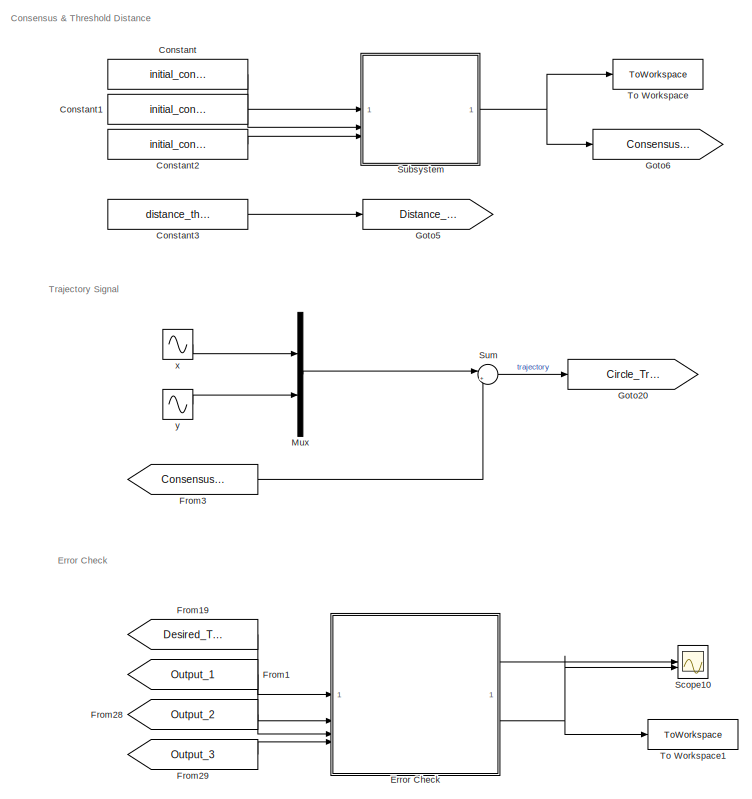
[diagram: root canvas - part 1/2, left side, full height]
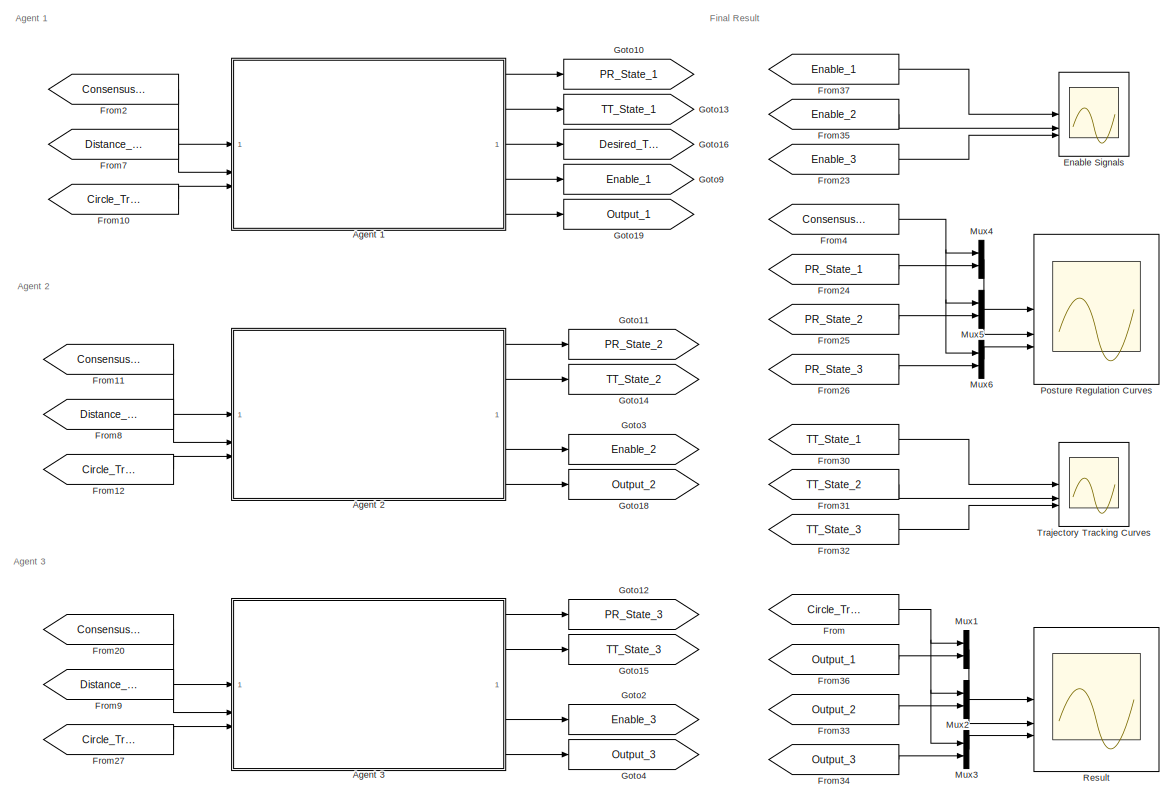
[diagram: root canvas - part 2/2, right side, full height]
MODEL slx_7dde1043251d
KIND model
CONFIG AbsTol = auto
CONFIG EnableMultiTasking = off
CONFIG FixedStep = 0.001
CONFIG MaxStep = auto
CONFIG MinStep = auto
CONFIG RelTol = 1e-4
CONFIG SampleTimeConstraint = Unconstrained
CONFIG SolverName = FixedStepAuto
CONFIG StartTime = 0.0
CONFIG StopTime = 10.0
BLOCK [SubSystem] Agent 1
  InitialCondition = initial_conditions_1
  InitialCondition_trans = initial_conditions_trans_1
  NameLocation = top
  ReferencedSubsystem = agent_model_sub
BLOCK [SubSystem] Agent 2
  InitialCondition = initial_conditions_2
  InitialCondition_trans = initial_conditions_trans_2
  NameLocation = top
  ReferencedSubsystem = agent_model_sub
BLOCK [SubSystem] Agent 3
  InitialCondition = initial_conditions_3
  InitialCondition_trans = initial_conditions_trans_3
  NameLocation = top
  ReferencedSubsystem = agent_model_sub
BLOCK [Constant] Constant
  Value = initial_conditions_1
BLOCK [Constant] Constant1
  Value = initial_conditions_2
BLOCK [Constant] Constant2
  Value = initial_conditions_3
BLOCK [Constant] Constant3
  Value = distance_threshold
BLOCK [Scope] Enable Signals
  Floating = off
  NameLocation = right
  NumInputPorts = 3
  ScopeSpecificationString = Simulink.scopes.TimeScopeBlockCfg('CurrentConfiguration', extmgr.ConfigurationSet(extmgr.Configuration('Core','General UI',true),extmgr.Configuration('Core','Source UI',true),extmgr.Configuration('Sources','WiredSimulink',true,'DataLoggingVariableName','enables','DataLogging',true,'DataLoggingSaveFormat','StructureWithTime'),extmgr.Configuration('Visuals','Time Domain',true,'SerializedDisplays',{s...<+2744ch>
BLOCK [SubSystem] Error Check
  NameLocation = top
  ReferencedSubsystem = error_check_sub
BLOCK [From] From
  GotoTag = Circle_Trajectory
BLOCK [From] From1
  GotoTag = Output_1
BLOCK [From] From10
  GotoTag = Circle_Trajectory
BLOCK [From] From11
  GotoTag = Consensus_Position
BLOCK [From] From12
  GotoTag = Circle_Trajectory
BLOCK [From] From19
  GotoTag = Desired_Trajectory
BLOCK [From] From2
  GotoTag = Consensus_Position
BLOCK [From] From20
  GotoTag = Consensus_Position
BLOCK [From] From23
  GotoTag = Enable_3
BLOCK [From] From24
  GotoTag = PR_State_1
BLOCK [From] From25
  GotoTag = PR_State_2
BLOCK [From] From26
  GotoTag = PR_State_3
BLOCK [From] From27
  GotoTag = Circle_Trajectory
BLOCK [From] From28
  GotoTag = Output_2
BLOCK [From] From29
  GotoTag = Output_3
BLOCK [From] From3
  GotoTag = Consensus_Position
BLOCK [From] From30
  GotoTag = TT_State_1
BLOCK [From] From31
  GotoTag = TT_State_2
BLOCK [From] From32
  GotoTag = TT_State_3
BLOCK [From] From33
  GotoTag = Output_2
BLOCK [From] From34
  GotoTag = Output_3
BLOCK [From] From35
  GotoTag = Enable_2
BLOCK [From] From36
  GotoTag = Output_1
BLOCK [From] From37
  GotoTag = Enable_1
BLOCK [From] From4
  GotoTag = Consensus_Position
BLOCK [From] From7
  GotoTag = Distance_Threshold
BLOCK [From] From8
  GotoTag = Distance_Threshold
BLOCK [From] From9
  GotoTag = Distance_Threshold
BLOCK [Goto] Goto10
  GotoTag = PR_State_1
BLOCK [Goto] Goto11
  GotoTag = PR_State_2
BLOCK [Goto] Goto12
  GotoTag = PR_State_3
BLOCK [Goto] Goto13
  GotoTag = TT_State_1
BLOCK [Goto] Goto14
  GotoTag = TT_State_2
BLOCK [Goto] Goto15
  GotoTag = TT_State_3
BLOCK [Goto] Goto16
  GotoTag = Desired_Trajectory
BLOCK [Goto] Goto18
  GotoTag = Output_2
BLOCK [Goto] Goto19
  GotoTag = Output_1
BLOCK [Goto] Goto2
  GotoTag = Enable_3
BLOCK [Goto] Goto20
  GotoTag = Circle_Trajectory
BLOCK [Goto] Goto3
  GotoTag = Enable_2
BLOCK [Goto] Goto4
  GotoTag = Output_3
BLOCK [Goto] Goto5
  GotoTag = Distance_Threshold
BLOCK [Goto] Goto6
  GotoTag = Consensus_Position
BLOCK [Goto] Goto9
  GotoTag = Enable_1
BLOCK [Mux] Mux
  DisplayOption = bar
  Inputs = 2
BLOCK [Mux] Mux1
  DisplayOption = bar
  Inputs = 2
BLOCK [Mux] Mux2
  DisplayOption = bar
  Inputs = 2
BLOCK [Mux] Mux3
  DisplayOption = bar
  Inputs = 2
BLOCK [Mux] Mux4
  DisplayOption = bar
  Inputs = 2
BLOCK [Mux] Mux5
  DisplayOption = bar
  Inputs = 2
BLOCK [Mux] Mux6
  DisplayOption = bar
  Inputs = 2
BLOCK [Scope] Posture Regulation Curves
  Floating = off
  NameLocation = right
  NumInputPorts = 3
  ScopeSpecificationString = Simulink.scopes.TimeScopeBlockCfg('CurrentConfiguration', extmgr.ConfigurationSet(extmgr.Configuration('Core','General UI',true),extmgr.Configuration('Core','Source UI',true),extmgr.Configuration('Sources','WiredSimulink',true,'DataLoggingVariableName','ScopeData3'),extmgr.Configuration('Visuals','Time Domain',true,'SerializedDisplays',{struct('MinYLimReal','-1.47904','MaxYLimReal','7.94212','YLab...<+3124ch>
BLOCK [Scope] Result
  Floating = off
  NameLocation = right
  NumInputPorts = 3
  ScopeSpecificationString = Simulink.scopes.TimeScopeBlockCfg('CurrentConfiguration', extmgr.ConfigurationSet(extmgr.Configuration('Core','General UI',true),extmgr.Configuration('Core','Source UI',true),extmgr.Configuration('Sources','WiredSimulink',true,'DataLoggingVariableName','data','DataLogging',true,'DataLoggingSaveFormat','StructureWithTime'),extmgr.Configuration('Visuals','Time Domain',true,'SerializedDisplays',{stru...<+3247ch>
BLOCK [Scope] Scope10
  Floating = off
  NumInputPorts = 2
  ScopeSpecificationString = Simulink.scopes.TimeScopeBlockCfg('CurrentConfiguration', extmgr.ConfigurationSet(extmgr.Configuration('Core','General UI',true),extmgr.Configuration('Core','Source UI',true),extmgr.Configuration('Sources','WiredSimulink',true,'DataLoggingVariableName','errors','DataLogging',true,'DataLoggingSaveFormat','StructureWithTime'),extmgr.Configuration('Visuals','Time Domain',true,'SerializedDisplays',{st...<+1647ch>
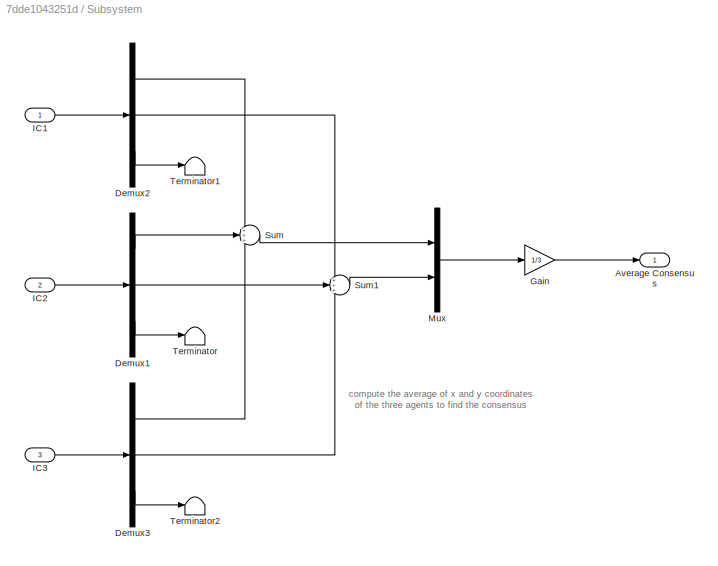
BLOCK [SubSystem] Subsystem
BLOCK [Outport] Subsystem/Average Consensus
  NameLocation = right
BLOCK [Demux] Subsystem/Demux1
  Outputs = 3
BLOCK [Demux] Subsystem/Demux2
  Outputs = 3
BLOCK [Demux] Subsystem/Demux3
  Outputs = 3
BLOCK [Gain] Subsystem/Gain
  Gain = 1/3
BLOCK [Inport] Subsystem/IC1
  NameLocation = left
BLOCK [Inport] Subsystem/IC2
  NameLocation = left
  Port = 2
BLOCK [Inport] Subsystem/IC3
  NameLocation = left
  Port = 3
BLOCK [Mux] Subsystem/Mux
  DisplayOption = bar
  Inputs = 2
BLOCK [Sum] Subsystem/Sum
  Inputs = +++
BLOCK [Sum] Subsystem/Sum1
  Inputs = +++
BLOCK [Terminator] Subsystem/Terminator
BLOCK [Terminator] Subsystem/Terminator1
BLOCK [Terminator] Subsystem/Terminator2
BLOCK [Sum] Sum
  Inputs = |++
BLOCK [ToWorkspace] To Workspace
  FixptAsFi = on
  MaxDataPoints = inf
  SampleTime = -1
  SaveFormat = Structure With Time
  VariableName = consensus
BLOCK [ToWorkspace] To Workspace1
  FixptAsFi = on
  MaxDataPoints = inf
  SampleTime = -1
  SaveFormat = Structure With Time
  VariableName = check
BLOCK [Scope] Trajectory Tracking Curves
  Floating = off
  NameLocation = right
  NumInputPorts = 3
  ScopeSpecificationString = Simulink.scopes.TimeScopeBlockCfg('CurrentConfiguration', extmgr.ConfigurationSet(extmgr.Configuration('Core','General UI',true),extmgr.Configuration('Core','Source UI',true),extmgr.Configuration('Sources','WiredSimulink',true,'DataLoggingVariableName','ScopeData2'),extmgr.Configuration('Visuals','Time Domain',true,'SerializedDisplays',{struct('MinYLimReal','-262.81799','MaxYLimReal','522.69396','...<+2903ch>
BLOCK [Sin] x
  NameLocation = left
  SampleTime = 0
BLOCK [Sin] y
  NameLocation = left
  Phase = pi/2
  SampleTime = 0
ANNOTATION (root): Agent 1
ANNOTATION (root): Agent 2
ANNOTATION (root): Agent 3
ANNOTATION (root): Consensus & Threshold Distance
ANNOTATION (root): Error Check
ANNOTATION (root): Final Result
ANNOTATION (root): Trajectory Signal
ANNOTATION Subsystem: compute the average of x and y coordinates of the three agents to find the consensus
LINE Agent 1:1 -> Goto10:1
LINE Agent 1:2 -> Goto13:1
LINE Agent 1:3 -> Goto16:1
LINE Agent 1:4 -> Goto9:1
LINE Agent 1:5 -> Goto19:1
LINE Agent 2:1 -> Goto11:1
LINE Agent 2:2 -> Goto14:1
LINE Agent 2:4 -> Goto3:1
LINE Agent 2:5 -> Goto18:1
LINE Agent 3:1 -> Goto12:1
LINE Agent 3:2 -> Goto15:1
LINE Agent 3:4 -> Goto2:1
LINE Agent 3:5 -> Goto4:1
LINE Constant1:1 -> Subsystem:2
LINE Constant2:1 -> Subsystem:3
LINE Constant3:1 -> Goto5:1
LINE Constant:1 -> Subsystem:1
LINE Error Check:1 -> Scope10:1
NET Error Check:2 -> Scope10:2, To Workspace1:1
LINE From10:1 -> Agent 1:3
LINE From11:1 -> Agent 2:1
LINE From12:1 -> Agent 2:3
LINE From19:1 -> Error Check:1
LINE From1:1 -> Error Check:2
LINE From20:1 -> Agent 3:1
LINE From23:1 -> Enable Signals:3
LINE From24:1 -> Mux4:2
LINE From25:1 -> Mux5:2
LINE From26:1 -> Mux6:2
LINE From27:1 -> Agent 3:3
LINE From28:1 -> Error Check:3
LINE From29:1 -> Error Check:4
LINE From2:1 -> Agent 1:1
LINE From30:1 -> Trajectory Tracking Curves:1
LINE From31:1 -> Trajectory Tracking Curves:2
LINE From32:1 -> Trajectory Tracking Curves:3
LINE From33:1 -> Mux2:2
LINE From34:1 -> Mux3:2
LINE From35:1 -> Enable Signals:2
LINE From36:1 -> Mux1:2
LINE From37:1 -> Enable Signals:1
LINE From3:1 -> Sum:2
NET From4:1 -> Mux4:1, Mux5:1, Mux6:1
LINE From7:1 -> Agent 1:2
LINE From8:1 -> Agent 2:2
LINE From9:1 -> Agent 3:2
NET From:1 -> Mux1:1, Mux2:1, Mux3:1
LINE Mux1:1 -> Result:1
LINE Mux2:1 -> Result:2
LINE Mux3:1 -> Result:3
LINE Mux4:1 -> Posture Regulation Curves:1
LINE Mux5:1 -> Posture Regulation Curves:2
LINE Mux6:1 -> Posture Regulation Curves:3
LINE Mux:1 -> Sum:1
LINE Subsystem/Demux1:1 -> Subsystem/Sum:2
LINE Subsystem/Demux1:2 -> Subsystem/Sum1:2
LINE Subsystem/Demux1:3 -> Subsystem/Terminator:1
LINE Subsystem/Demux2:1 -> Subsystem/Sum:1
LINE Subsystem/Demux2:2 -> Subsystem/Sum1:1
LINE Subsystem/Demux2:3 -> Subsystem/Terminator1:1
LINE Subsystem/Demux3:1 -> Subsystem/Sum:3
LINE Subsystem/Demux3:2 -> Subsystem/Sum1:3
LINE Subsystem/Demux3:3 -> Subsystem/Terminator2:1
LINE Subsystem/Gain:1 -> Subsystem/Average Consensus:1
LINE Subsystem/IC1:1 -> Subsystem/Demux2:1
LINE Subsystem/IC2:1 -> Subsystem/Demux1:1
LINE Subsystem/IC3:1 -> Subsystem/Demux3:1
LINE Subsystem/Mux:1 -> Subsystem/Gain:1
LINE Subsystem/Sum1:1 -> Subsystem/Mux:2
LINE Subsystem/Sum:1 -> Subsystem/Mux:1
NET Subsystem:1 -> Goto6:1, To Workspace:1
LINE Sum:1 -> Goto20:1
LINE x:1 -> Mux:1
LINE y:1 -> Mux:2
note: NET lines group one-source signal fan-out (src -> all destinations, sorted); 1:1 wires keep LINE
